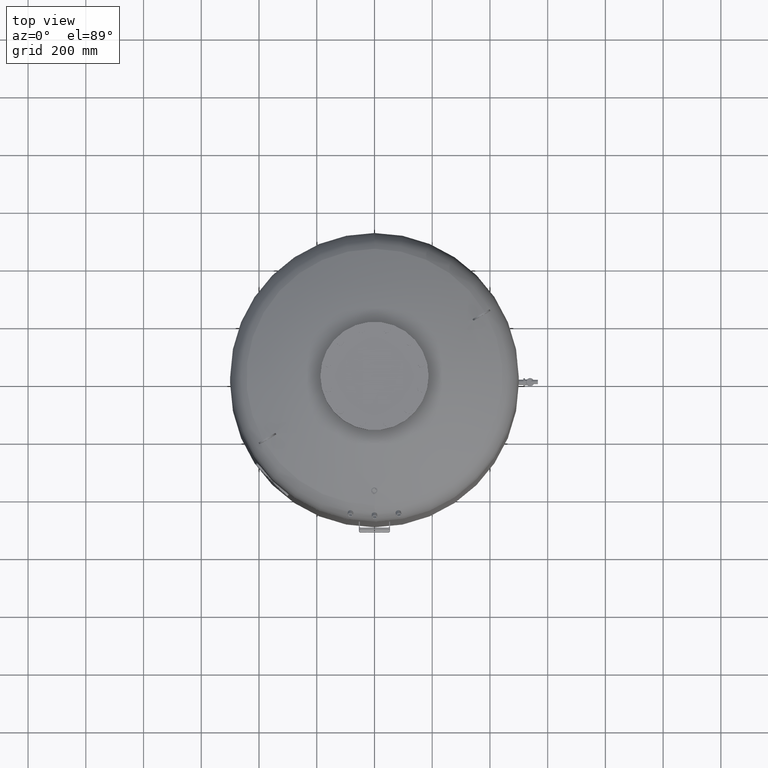
[diagram: clean part render]
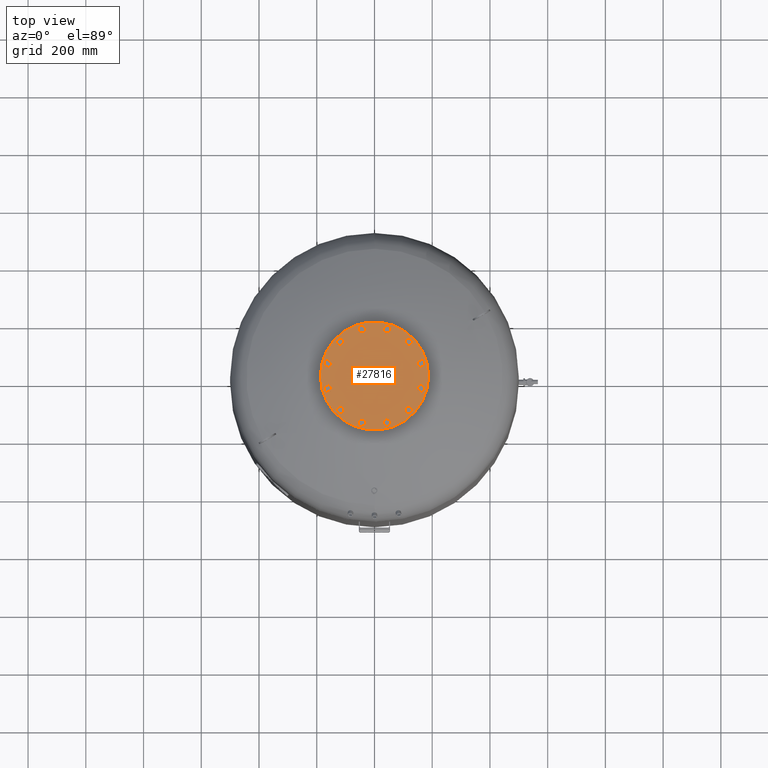
[diagram: same view with one face highlighted and labeled with its STEP entity id]
A machine part, top view. The second image highlights one B-rep face of the part: STEP entity #27816.
In plain terms, the highlighted planar face has unit normal (0, 0, 1).
Its self-contained STEP definition (entity closure, byte-faithful):
#20054=CARTESIAN_POINT('',(-187.500000000000000,0.0,2050.0));
#20055=VERTEX_POINT('',#20054);
#20071=CARTESIAN_POINT('',(187.500000000000000,-2.296137E-014,2050.0));
#20072=VERTEX_POINT('',#20071);
#20079=CARTESIAN_POINT('',(0.0,0.0,2050.0));
#20080=DIRECTION('',(0.0,0.0,-1.0));
#20081=DIRECTION('',(-1.0,0.0,0.0));
#20082=AXIS2_PLACEMENT_3D('',#20079,#20080,#20081);
#20083=CIRCLE('',#20082,187.500000000000000);
#20084=EDGE_CURVE('',#20072,#20055,#20083,.T.);
#25310=CARTESIAN_POINT('',(157.729139400922860,30.104983413641008,2050.0));
#25311=VERTEX_POINT('',#25310);
#25312=CARTESIAN_POINT('',(148.288440171855850,40.247625971983268,2050.0));
#25313=VERTEX_POINT('',#25312);
#25314=CARTESIAN_POINT('',(157.729139400922860,30.104983413641008,2050.0));
#25315=DIRECTION('',(-0.681323780155013,0.731982176419128,0.0));
#25316=VECTOR('',#25315,13.856406460551090);
#25317=LINE('',#25314,#25316);
#25318=EDGE_CURVE('',#25311,#25313,#25317,.T.);
#25350=CARTESIAN_POINT('',(171.233275132485970,33.209547496330110,2050.0));
#25351=VERTEX_POINT('',#25350);
#25352=CARTESIAN_POINT('',(171.233275132485970,33.209547496330110,2050.0));
#25353=DIRECTION('',(-0.974577049973894,-0.224052613607123,0.0));
#25354=VECTOR('',#25353,13.856406460551119);
#25355=LINE('',#25352,#25354);
#25356=EDGE_CURVE('',#25351,#25311,#25355,.T.);
#25381=CARTESIAN_POINT('',(175.296711634982050,46.456754137361422,2050.0));
#25382=VERTEX_POINT('',#25381);
#25383=CARTESIAN_POINT('',(175.296711634982050,46.456754137361422,2050.0));
#25384=DIRECTION('',(-0.293253269818881,-0.956034790026249,0.0));
#25385=VECTOR('',#25384,13.856406460551076);
#25386=LINE('',#25383,#25385);
#25387=EDGE_CURVE('',#25382,#25351,#25386,.T.);
#25412=CARTESIAN_POINT('',(152.351876674351930,53.494832613014587,2050.0));
#25413=VERTEX_POINT('',#25412);
#25414=CARTESIAN_POINT('',(148.288440171855850,40.247625971983268,2050.0));
#25415=DIRECTION('',(0.293253269818881,0.956034790026249,0.0));
#25416=VECTOR('',#25415,13.856406460551083);
#25417=LINE('',#25414,#25416);
#25418=EDGE_CURVE('',#25313,#25413,#25417,.T.);
#25443=CARTESIAN_POINT('',(165.856012405915040,56.599396695703689,2050.0));
#25444=VERTEX_POINT('',#25443);
#25445=CARTESIAN_POINT('',(152.351876674351930,53.494832613014587,2050.0));
#25446=DIRECTION('',(0.974577049973894,0.224052613607123,0.0));
#25447=VECTOR('',#25446,13.856406460551119);
#25448=LINE('',#25445,#25447);
#25449=EDGE_CURVE('',#25413,#25444,#25448,.T.);
#25474=CARTESIAN_POINT('',(165.856012405915040,56.599396695703689,2050.0));
#25475=DIRECTION('',(0.681323780155012,-0.731982176419129,0.0));
#25476=VECTOR('',#25475,13.856406460551096);
#25477=LINE('',#25474,#25476);
#25478=EDGE_CURVE('',#25444,#25382,#25477,.T.);
#25510=CARTESIAN_POINT('',(121.544949931435720,104.936250117183760,2050.0));
#25511=VERTEX_POINT('',#25510);
#25512=CARTESIAN_POINT('',(108.297743290404380,108.999686619679820,2050.0));
#25513=VERTEX_POINT('',#25512);
#25514=CARTESIAN_POINT('',(121.544949931435720,104.936250117183760,2050.0));
#25515=DIRECTION('',(-0.956034790026250,0.293253269818880,0.0));
#25516=VECTOR('',#25515,13.856406460551101);
#25517=LINE('',#25514,#25516);
#25518=EDGE_CURVE('',#25511,#25513,#25517,.T.);
#25550=CARTESIAN_POINT('',(131.687592489777960,114.376949346250780,2050.0));
#25551=VERTEX_POINT('',#25550);
#25552=CARTESIAN_POINT('',(131.687592489777960,114.376949346250780,2050.0));
#25553=DIRECTION('',(-0.731982176419127,-0.681323780155014,0.0));
#25554=VECTOR('',#25553,13.856406460551080);
#25555=LINE('',#25552,#25554);
#25556=EDGE_CURVE('',#25551,#25511,#25555,.T.);
#25581=CARTESIAN_POINT('',(128.583028407088880,127.881085077813880,2050.0));
#25582=VERTEX_POINT('',#25581);
#25583=CARTESIAN_POINT('',(128.583028407088880,127.881085077813880,2050.0));
#25584=DIRECTION('',(0.224052613607122,-0.974577049973894,0.0));
#25585=VECTOR('',#25584,13.856406460551099);
#25586=LINE('',#25583,#25585);
#25587=EDGE_CURVE('',#25582,#25551,#25586,.T.);
#25612=CARTESIAN_POINT('',(105.193179207715300,122.503822351242900,2050.0));
#25613=VERTEX_POINT('',#25612);
#25614=CARTESIAN_POINT('',(108.297743290404380,108.999686619679820,2050.0));
#25615=DIRECTION('',(-0.224052613607122,0.974577049973894,0.0));
#25616=VECTOR('',#25615,13.856406460551087);
#25617=LINE('',#25614,#25616);
#25618=EDGE_CURVE('',#25513,#25613,#25617,.T.);
#25643=CARTESIAN_POINT('',(115.335821766057560,131.944521580309950,2050.0));
#25644=VERTEX_POINT('',#25643);
#25645=CARTESIAN_POINT('',(105.193179207715300,122.503822351242900,2050.0));
#25646=DIRECTION('',(0.731982176419127,0.681323780155014,0.0));
#25647=VECTOR('',#25646,13.856406460551121);
#25648=LINE('',#25645,#25647);
#25649=EDGE_CURVE('',#25613,#25644,#25648,.T.);
#25674=CARTESIAN_POINT('',(115.335821766057560,131.944521580309950,2050.0));
#25675=DIRECTION('',(0.956034790026249,-0.293253269818881,0.0));
#25676=VECTOR('',#25675,13.856406460551076);
#25677=LINE('',#25674,#25676);
#25678=EDGE_CURVE('',#25644,#25582,#25677,.T.);
#25710=CARTESIAN_POINT('',(52.792889283739193,151.649933345076730,2050.0));
#25711=VERTEX_POINT('',#25710);
#25712=CARTESIAN_POINT('',(39.288753552176118,148.545369262387680,2050.0));
#25713=VERTEX_POINT('',#25712);
#25714=CARTESIAN_POINT('',(52.792889283739193,151.649933345076730,2050.0));
#25715=DIRECTION('',(-0.974577049973894,-0.224052613607120,0.0));
#25716=VECTOR('',#25715,13.856406460551073);
#25717=LINE('',#25714,#25716);
#25718=EDGE_CURVE('',#25711,#25713,#25717,.T.);
#25750=CARTESIAN_POINT('',(56.856325786235274,164.897139986108100,2050.0));
#25751=VERTEX_POINT('',#25750);
#25752=CARTESIAN_POINT('',(56.856325786235274,164.897139986108100,2050.0));
#25753=DIRECTION('',(-0.293253269818881,-0.956034790026249,0.0));
#25754=VECTOR('',#25753,13.856406460551133);
#25755=LINE('',#25752,#25754);
#25756=EDGE_CURVE('',#25751,#25711,#25755,.T.);
#25781=CARTESIAN_POINT('',(47.415626557168267,175.039782544450330,2050.0));
#25782=VERTEX_POINT('',#25781);
#25783=CARTESIAN_POINT('',(47.415626557168267,175.039782544450330,2050.0));
#25784=DIRECTION('',(0.681323780155014,-0.731982176419128,0.0));
#25785=VECTOR('',#25784,13.856406460551069);
#25786=LINE('',#25783,#25785);
#25787=EDGE_CURVE('',#25782,#25751,#25786,.T.);
#25812=CARTESIAN_POINT('',(29.848054323109103,158.688011820729910,2050.0));
#25813=VERTEX_POINT('',#25812);
#25814=CARTESIAN_POINT('',(39.288753552176118,148.545369262387680,2050.0));
#25815=DIRECTION('',(-0.681323780155014,0.731982176419127,0.0));
#25816=VECTOR('',#25815,13.856406460551076);
#25817=LINE('',#25814,#25816);
#25818=EDGE_CURVE('',#25713,#25813,#25817,.T.);
#25843=CARTESIAN_POINT('',(33.911490825605156,171.935218461761250,2050.0));
#25844=VERTEX_POINT('',#25843);
#25845=CARTESIAN_POINT('',(29.848054323109103,158.688011820729910,2050.0));
#25846=DIRECTION('',(0.293253269818879,0.956034790026250,0.0));
#25847=VECTOR('',#25846,13.856406460551097);
#25848=LINE('',#25845,#25847);
#25849=EDGE_CURVE('',#25813,#25844,#25848,.T.);
#25874=CARTESIAN_POINT('',(33.911490825605156,171.935218461761250,2050.0));
#25875=DIRECTION('',(0.974577049973894,0.224052613607121,0.0));
#25876=VECTOR('',#25875,13.856406460551113);
#25877=LINE('',#25874,#25876);
#25878=EDGE_CURVE('',#25844,#25782,#25877,.T.);
#25910=CARTESIAN_POINT('',(-30.104983413641008,157.729139400922860,2050.0));
#25911=VERTEX_POINT('',#25910);
#25912=CARTESIAN_POINT('',(-40.247625971983268,148.288440171855850,2050.0));
#25913=VERTEX_POINT('',#25912);
#25914=CARTESIAN_POINT('',(-30.104983413641008,157.729139400922860,2050.0));
#25915=DIRECTION('',(-0.731982176419128,-0.681323780155013,0.0));
#25916=VECTOR('',#25915,13.856406460551090);
#25917=LINE('',#25914,#25916);
#25918=EDGE_CURVE('',#25911,#25913,#25917,.T.);
#25950=CARTESIAN_POINT('',(-33.209547496330110,171.233275132485970,2050.0));
#25951=VERTEX_POINT('',#25950);
#25952=CARTESIAN_POINT('',(-33.209547496330110,171.233275132485970,2050.0));
#25953=DIRECTION('',(0.224052613607123,-0.974577049973894,0.0));
#25954=VECTOR('',#25953,13.856406460551119);
#25955=LINE('',#25952,#25954);
#25956=EDGE_CURVE('',#25951,#25911,#25955,.T.);
#25981=CARTESIAN_POINT('',(-46.456754137361422,175.296711634982050,2050.0));
#25982=VERTEX_POINT('',#25981);
#25983=CARTESIAN_POINT('',(-46.456754137361422,175.296711634982050,2050.0));
#25984=DIRECTION('',(0.956034790026249,-0.293253269818881,0.0));
#25985=VECTOR('',#25984,13.856406460551076);
#25986=LINE('',#25983,#25985);
#25987=EDGE_CURVE('',#25982,#25951,#25986,.T.);
#26012=CARTESIAN_POINT('',(-53.494832613014587,152.351876674351930,2050.0));
#26013=VERTEX_POINT('',#26012);
#26014=CARTESIAN_POINT('',(-40.247625971983268,148.288440171855850,2050.0));
#26015=DIRECTION('',(-0.956034790026249,0.293253269818881,0.0));
#26016=VECTOR('',#26015,13.856406460551083);
#26017=LINE('',#26014,#26016);
#26018=EDGE_CURVE('',#25913,#26013,#26017,.T.);
#26043=CARTESIAN_POINT('',(-56.599396695703689,165.856012405915040,2050.0));
#26044=VERTEX_POINT('',#26043);
#26045=CARTESIAN_POINT('',(-53.494832613014587,152.351876674351930,2050.0));
#26046=DIRECTION('',(-0.224052613607123,0.974577049973894,0.0));
#26047=VECTOR('',#26046,13.856406460551119);
#26048=LINE('',#26045,#26047);
#26049=EDGE_CURVE('',#26013,#26044,#26048,.T.);
#26074=CARTESIAN_POINT('',(-56.599396695703689,165.856012405915040,2050.0));
#26075=DIRECTION('',(0.731982176419129,0.681323780155012,0.0));
#26076=VECTOR('',#26075,13.856406460551096);
#26077=LINE('',#26074,#26076);
#26078=EDGE_CURVE('',#26044,#25982,#26077,.T.);
#26110=CARTESIAN_POINT('',(-104.936250117183700,121.544949931435750,2050.0));
#26111=VERTEX_POINT('',#26110);
#26112=CARTESIAN_POINT('',(-108.999686619679760,108.297743290404440,2050.0));
#26113=VERTEX_POINT('',#26112);
#26114=CARTESIAN_POINT('',(-104.936250117183700,121.544949931435750,2050.0));
#26115=DIRECTION('',(-0.293253269818880,-0.956034790026249,0.0));
#26116=VECTOR('',#26115,13.856406460551073);
#26117=LINE('',#26114,#26116);
#26118=EDGE_CURVE('',#26111,#26113,#26117,.T.);
#26150=CARTESIAN_POINT('',(-114.376949346250730,131.687592489778010,2050.0));
#26151=VERTEX_POINT('',#26150);
#26152=CARTESIAN_POINT('',(-114.376949346250730,131.687592489778010,2050.0));
#26153=DIRECTION('',(0.681323780155013,-0.731982176419128,0.0));
#26154=VECTOR('',#26153,13.856406460551101);
#26155=LINE('',#26152,#26154);
#26156=EDGE_CURVE('',#26151,#26111,#26155,.T.);
#26181=CARTESIAN_POINT('',(-127.881085077813810,128.583028407088930,2050.0));
#26182=VERTEX_POINT('',#26181);
#26183=CARTESIAN_POINT('',(-127.881085077813810,128.583028407088930,2050.0));
#26184=DIRECTION('',(0.974577049973894,0.224052613607122,0.0));
#26185=VECTOR('',#26184,13.856406460551087);
#26186=LINE('',#26183,#26185);
#26187=EDGE_CURVE('',#26182,#26151,#26186,.T.);
#26212=CARTESIAN_POINT('',(-122.503822351242850,105.193179207715360,2050.0));
#26213=VERTEX_POINT('',#26212);
#26214=CARTESIAN_POINT('',(-108.999686619679760,108.297743290404440,2050.0));
#26215=DIRECTION('',(-0.974577049973894,-0.224052613607122,0.0));
#26216=VECTOR('',#26215,13.856406460551087);
#26217=LINE('',#26214,#26216);
#26218=EDGE_CURVE('',#26113,#26213,#26217,.T.);
#26243=CARTESIAN_POINT('',(-131.944521580309900,115.335821766057620,2050.0));
#26244=VERTEX_POINT('',#26243);
#26245=CARTESIAN_POINT('',(-122.503822351242850,105.193179207715360,2050.0));
#26246=DIRECTION('',(-0.681323780155014,0.731982176419127,0.0));
#26247=VECTOR('',#26246,13.856406460551121);
#26248=LINE('',#26245,#26247);
#26249=EDGE_CURVE('',#26213,#26244,#26248,.T.);
#26274=CARTESIAN_POINT('',(-131.944521580309900,115.335821766057620,2050.0));
#26275=DIRECTION('',(0.293253269818882,0.956034790026249,0.0));
#26276=VECTOR('',#26275,13.856406460551081);
#26277=LINE('',#26274,#26276);
#26278=EDGE_CURVE('',#26244,#26182,#26277,.T.);
#26310=CARTESIAN_POINT('',(-151.649933345076730,52.792889283739214,2050.0));
#26311=VERTEX_POINT('',#26310);
#26312=CARTESIAN_POINT('',(-148.545369262387650,39.288753552176125,2050.0));
#26313=VERTEX_POINT('',#26312);
#26314=CARTESIAN_POINT('',(-151.649933345076730,52.792889283739214,2050.0));
#26315=DIRECTION('',(0.224052613607122,-0.974577049973894,0.0));
#26316=VECTOR('',#26315,13.856406460551092);
#26317=LINE('',#26314,#26316);
#26318=EDGE_CURVE('',#26311,#26313,#26317,.T.);
#26350=CARTESIAN_POINT('',(-164.897139986108100,56.856325786235296,2050.0));
#26351=VERTEX_POINT('',#26350);
#26352=CARTESIAN_POINT('',(-164.897139986108100,56.856325786235296,2050.0));
#26353=DIRECTION('',(0.956034790026249,-0.293253269818881,0.0));
#26354=VECTOR('',#26353,13.856406460551133);
#26355=LINE('',#26352,#26354);
#26356=EDGE_CURVE('',#26351,#26311,#26355,.T.);
#26381=CARTESIAN_POINT('',(-175.039782544450300,47.415626557168260,2050.0));
#26382=VERTEX_POINT('',#26381);
#26383=CARTESIAN_POINT('',(-175.039782544450300,47.415626557168260,2050.0));
#26384=DIRECTION('',(0.731982176419126,0.681323780155016,0.0));
#26385=VECTOR('',#26384,13.856406460551069);
#26386=LINE('',#26383,#26385);
#26387=EDGE_CURVE('',#26382,#26351,#26386,.T.);
#26412=CARTESIAN_POINT('',(-158.688011820729910,29.848054323109110,2050.0));
#26413=VERTEX_POINT('',#26412);
#26414=CARTESIAN_POINT('',(-148.545369262387650,39.288753552176125,2050.0));
#26415=DIRECTION('',(-0.731982176419128,-0.681323780155013,0.0));
#26416=VECTOR('',#26415,13.856406460551096);
#26417=LINE('',#26414,#26416);
#26418=EDGE_CURVE('',#26313,#26413,#26417,.T.);
#26443=CARTESIAN_POINT('',(-171.935218461761250,33.911490825605171,2050.0));
#26444=VERTEX_POINT('',#26443);
#26445=CARTESIAN_POINT('',(-158.688011820729910,29.848054323109110,2050.0));
#26446=DIRECTION('',(-0.956034790026250,0.293253269818880,0.0));
#26447=VECTOR('',#26446,13.856406460551101);
#26448=LINE('',#26445,#26447);
#26449=EDGE_CURVE('',#26413,#26444,#26448,.T.);
#26474=CARTESIAN_POINT('',(-171.935218461761250,33.911490825605171,2050.0));
#26475=DIRECTION('',(-0.224052613607120,0.974577049973894,0.0));
#26476=VECTOR('',#26475,13.856406460551087);
#26477=LINE('',#26474,#26476);
#26478=EDGE_CURVE('',#26444,#26382,#26477,.T.);
#26510=CARTESIAN_POINT('',(-157.729139400922860,-30.104983413640987,2050.0));
#26511=VERTEX_POINT('',#26510);
#26512=CARTESIAN_POINT('',(-148.288440171855850,-40.247625971983247,2050.0));
#26513=VERTEX_POINT('',#26512);
#26514=CARTESIAN_POINT('',(-157.729139400922860,-30.104983413640987,2050.0));
#26515=DIRECTION('',(0.681323780155013,-0.731982176419128,0.0));
#26516=VECTOR('',#26515,13.856406460551090);
#26517=LINE('',#26514,#26516);
#26518=EDGE_CURVE('',#26511,#26513,#26517,.T.);
#26550=CARTESIAN_POINT('',(-171.233275132486000,-33.209547496330096,2050.0));
#26551=VERTEX_POINT('',#26550);
#26552=CARTESIAN_POINT('',(-171.233275132486000,-33.209547496330096,2050.0));
#26553=DIRECTION('',(0.974577049973894,0.224052613607123,0.0));
#26554=VECTOR('',#26553,13.856406460551147);
#26555=LINE('',#26552,#26554);
#26556=EDGE_CURVE('',#26551,#26511,#26555,.T.);
#26581=CARTESIAN_POINT('',(-175.296711634982050,-46.456754137361401,2050.0));
#26582=VERTEX_POINT('',#26581);
#26583=CARTESIAN_POINT('',(-175.296711634982050,-46.456754137361401,2050.0));
#26584=DIRECTION('',(0.293253269818880,0.956034790026250,0.0));
#26585=VECTOR('',#26584,13.856406460551062);
#26586=LINE('',#26583,#26585);
#26587=EDGE_CURVE('',#26582,#26551,#26586,.T.);
#26612=CARTESIAN_POINT('',(-152.351876674351960,-53.494832613014580,2050.0));
#26613=VERTEX_POINT('',#26612);
#26614=CARTESIAN_POINT('',(-148.288440171855850,-40.247625971983247,2050.0));
#26615=DIRECTION('',(-0.293253269818883,-0.956034790026249,0.0));
#26616=VECTOR('',#26615,13.856406460551106);
#26617=LINE('',#26614,#26616);
#26618=EDGE_CURVE('',#26513,#26613,#26617,.T.);
#26643=CARTESIAN_POINT('',(-165.856012405915070,-56.599396695703646,2050.0));
#26644=VERTEX_POINT('',#26643);
#26645=CARTESIAN_POINT('',(-152.351876674351960,-53.494832613014580,2050.0));
#26646=DIRECTION('',(-0.974577049973894,-0.224052613607121,0.0));
#26647=VECTOR('',#26646,13.856406460551110);
#26648=LINE('',#26645,#26647);
#26649=EDGE_CURVE('',#26613,#26644,#26648,.T.);
#26674=CARTESIAN_POINT('',(-165.856012405915070,-56.599396695703646,2050.0));
#26675=DIRECTION('',(-0.681323780155012,0.731982176419129,0.0));
#26676=VECTOR('',#26675,13.856406460551062);
#26677=LINE('',#26674,#26676);
#26678=EDGE_CURVE('',#26644,#26582,#26677,.T.);
#26710=CARTESIAN_POINT('',(-121.544949931435750,-104.936250117183680,2050.0));
#26711=VERTEX_POINT('',#26710);
#26712=CARTESIAN_POINT('',(-108.297743290404440,-108.999686619679760,2050.0));
#26713=VERTEX_POINT('',#26712);
#26714=CARTESIAN_POINT('',(-121.544949931435750,-104.936250117183680,2050.0));
#26715=DIRECTION('',(0.956034790026249,-0.293253269818882,0.0));
#26716=VECTOR('',#26715,13.856406460551081);
#26717=LINE('',#26714,#26716);
#26718=EDGE_CURVE('',#26711,#26713,#26717,.T.);
#26750=CARTESIAN_POINT('',(-131.687592489778010,-114.376949346250730,2050.0));
#26751=VERTEX_POINT('',#26750);
#26752=CARTESIAN_POINT('',(-131.687592489778010,-114.376949346250730,2050.0));
#26753=DIRECTION('',(0.731982176419127,0.681323780155014,0.0));
#26754=VECTOR('',#26753,13.856406460551121);
#26755=LINE('',#26752,#26754);
#26756=EDGE_CURVE('',#26751,#26711,#26755,.T.);
#26781=CARTESIAN_POINT('',(-128.583028407088930,-127.881085077813790,2050.0));
#26782=VERTEX_POINT('',#26781);
#26783=CARTESIAN_POINT('',(-128.583028407088930,-127.881085077813790,2050.0));
#26784=DIRECTION('',(-0.224052613607122,0.974577049973894,0.0));
#26785=VECTOR('',#26784,13.856406460551071);
#26786=LINE('',#26783,#26785);
#26787=EDGE_CURVE('',#26782,#26751,#26786,.T.);
#26812=CARTESIAN_POINT('',(-105.193179207715360,-122.503822351242850,2050.0));
#26813=VERTEX_POINT('',#26812);
#26814=CARTESIAN_POINT('',(-108.297743290404440,-108.999686619679760,2050.0));
#26815=DIRECTION('',(0.224052613607122,-0.974577049973894,0.0));
#26816=VECTOR('',#26815,13.856406460551087);
#26817=LINE('',#26814,#26816);
#26818=EDGE_CURVE('',#26713,#26813,#26817,.T.);
#26843=CARTESIAN_POINT('',(-115.335821766057620,-131.944521580309900,2050.0));
#26844=VERTEX_POINT('',#26843);
#26845=CARTESIAN_POINT('',(-105.193179207715360,-122.503822351242850,2050.0));
#26846=DIRECTION('',(-0.731982176419127,-0.681323780155014,0.0));
#26847=VECTOR('',#26846,13.856406460551121);
#26848=LINE('',#26845,#26847);
#26849=EDGE_CURVE('',#26813,#26844,#26848,.T.);
#26874=CARTESIAN_POINT('',(-115.335821766057620,-131.944521580309900,2050.0));
#26875=DIRECTION('',(-0.956034790026249,0.293253269818883,0.0));
#26876=VECTOR('',#26875,13.856406460551085);
#26877=LINE('',#26874,#26876);
#26878=EDGE_CURVE('',#26844,#26782,#26877,.T.);
#26910=CARTESIAN_POINT('',(-52.792889283739228,-151.649933345076730,2050.0));
#26911=VERTEX_POINT('',#26910);
#26912=CARTESIAN_POINT('',(-39.288753552176132,-148.545369262387680,2050.0));
#26913=VERTEX_POINT('',#26912);
#26914=CARTESIAN_POINT('',(-52.792889283739228,-151.649933345076730,2050.0));
#26915=DIRECTION('',(0.974577049973894,0.224052613607120,0.0));
#26916=VECTOR('',#26915,13.856406460551094);
#26917=LINE('',#26914,#26916);
#26918=EDGE_CURVE('',#26911,#26913,#26917,.T.);
#26950=CARTESIAN_POINT('',(-56.856325786235296,-164.897139986108100,2050.0));
#26951=VERTEX_POINT('',#26950);
#26952=CARTESIAN_POINT('',(-56.856325786235296,-164.897139986108100,2050.0));
#26953=DIRECTION('',(0.293253269818880,0.956034790026250,0.0));
#26954=VECTOR('',#26953,13.856406460551129);
#26955=LINE('',#26952,#26954);
#26956=EDGE_CURVE('',#26951,#26911,#26955,.T.);
#26981=CARTESIAN_POINT('',(-47.415626557168281,-175.039782544450300,2050.0));
#26982=VERTEX_POINT('',#26981);
#26983=CARTESIAN_POINT('',(-47.415626557168281,-175.039782544450300,2050.0));
#26984=DIRECTION('',(-0.681323780155015,0.731982176419126,0.0));
#26985=VECTOR('',#26984,13.856406460551055);
#26986=LINE('',#26983,#26985);
#26987=EDGE_CURVE('',#26982,#26951,#26986,.T.);
#27012=CARTESIAN_POINT('',(-29.848054323109121,-158.688011820729910,2050.0));
#27013=VERTEX_POINT('',#27012);
#27014=CARTESIAN_POINT('',(-39.288753552176132,-148.545369262387680,2050.0));
#27015=DIRECTION('',(0.681323780155014,-0.731982176419127,0.0));
#27016=VECTOR('',#27015,13.856406460551073);
#27017=LINE('',#27014,#27016);
#27018=EDGE_CURVE('',#26913,#27013,#27017,.T.);
#27043=CARTESIAN_POINT('',(-33.911490825605199,-171.935218461761280,2050.0));
#27044=VERTEX_POINT('',#27043);
#27045=CARTESIAN_POINT('',(-29.848054323109121,-158.688011820729910,2050.0));
#27046=DIRECTION('',(-0.293253269818880,-0.956034790026249,0.0));
#27047=VECTOR('',#27046,13.856406460551133);
#27048=LINE('',#27045,#27047);
#27049=EDGE_CURVE('',#27013,#27044,#27048,.T.);
#27074=CARTESIAN_POINT('',(-33.911490825605199,-171.935218461761280,2050.0));
#27075=DIRECTION('',(-0.974577049973895,-0.224052613607118,0.0));
#27076=VECTOR('',#27075,13.856406460551074);
#27077=LINE('',#27074,#27076);
#27078=EDGE_CURVE('',#27044,#26982,#27077,.T.);
#27110=CARTESIAN_POINT('',(30.104983413640952,-157.729139400922890,2050.0));
#27111=VERTEX_POINT('',#27110);
#27112=CARTESIAN_POINT('',(40.247625971983211,-148.288440171855880,2050.0));
#27113=VERTEX_POINT('',#27112);
#27114=CARTESIAN_POINT('',(30.104983413640952,-157.729139400922890,2050.0));
#27115=DIRECTION('',(0.731982176419128,0.681323780155013,0.0));
#27116=VECTOR('',#27115,13.856406460551090);
#27117=LINE('',#27114,#27116);
#27118=EDGE_CURVE('',#27111,#27113,#27117,.T.);
#27150=CARTESIAN_POINT('',(33.209547496330039,-171.233275132486000,2050.0));
#27151=VERTEX_POINT('',#27150);
#27152=CARTESIAN_POINT('',(33.209547496330039,-171.233275132486000,2050.0));
#27153=DIRECTION('',(-0.224052613607122,0.974577049973894,0.0));
#27154=VECTOR('',#27153,13.856406460551115);
#27155=LINE('',#27152,#27154);
#27156=EDGE_CURVE('',#27151,#27111,#27155,.T.);
#27181=CARTESIAN_POINT('',(46.456754137361351,-175.296711634982070,2050.0));
#27182=VERTEX_POINT('',#27181);
#27183=CARTESIAN_POINT('',(46.456754137361351,-175.296711634982070,2050.0));
#27184=DIRECTION('',(-0.956034790026249,0.293253269818881,0.0));
#27185=VECTOR('',#27184,13.856406460551076);
#27186=LINE('',#27183,#27185);
#27187=EDGE_CURVE('',#27182,#27151,#27186,.T.);
#27212=CARTESIAN_POINT('',(53.494832613014523,-152.351876674351960,2050.0));
#27213=VERTEX_POINT('',#27212);
#27214=CARTESIAN_POINT('',(40.247625971983211,-148.288440171855880,2050.0));
#27215=DIRECTION('',(0.956034790026249,-0.293253269818881,0.0));
#27216=VECTOR('',#27215,13.856406460551076);
#27217=LINE('',#27214,#27216);
#27218=EDGE_CURVE('',#27113,#27213,#27217,.T.);
#27243=CARTESIAN_POINT('',(56.599396695703625,-165.856012405915070,2050.0));
#27244=VERTEX_POINT('',#27243);
#27245=CARTESIAN_POINT('',(53.494832613014523,-152.351876674351960,2050.0));
#27246=DIRECTION('',(0.224052613607123,-0.974577049973894,0.0));
#27247=VECTOR('',#27246,13.856406460551119);
#27248=LINE('',#27245,#27247);
#27249=EDGE_CURVE('',#27213,#27244,#27248,.T.);
#27274=CARTESIAN_POINT('',(56.599396695703625,-165.856012405915070,2050.0));
#27275=DIRECTION('',(-0.731982176419129,-0.681323780155012,0.0));
#27276=VECTOR('',#27275,13.856406460551101);
#27277=LINE('',#27274,#27276);
#27278=EDGE_CURVE('',#27244,#27182,#27277,.T.);
#27310=CARTESIAN_POINT('',(104.936250117183660,-121.544949931435800,2050.0));
#27311=VERTEX_POINT('',#27310);
#27312=CARTESIAN_POINT('',(108.999686619679750,-108.297743290404470,2050.0));
#27313=VERTEX_POINT('',#27312);
#27314=CARTESIAN_POINT('',(104.936250117183660,-121.544949931435800,2050.0));
#27315=DIRECTION('',(0.293253269818882,0.956034790026249,0.0));
#27316=VECTOR('',#27315,13.856406460551094);
#27317=LINE('',#27314,#27316);
#27318=EDGE_CURVE('',#27311,#27313,#27317,.T.);
#27350=CARTESIAN_POINT('',(114.376949346250710,-131.687592489778040,2050.0));
#27351=VERTEX_POINT('',#27350);
#27352=CARTESIAN_POINT('',(114.376949346250710,-131.687592489778040,2050.0));
#27353=DIRECTION('',(-0.681323780155015,0.731982176419126,0.0));
#27354=VECTOR('',#27353,13.856406460551110);
#27355=LINE('',#27352,#27354);
#27356=EDGE_CURVE('',#27351,#27311,#27355,.T.);
#27381=CARTESIAN_POINT('',(127.881085077813760,-128.583028407088960,2050.0));
#27382=VERTEX_POINT('',#27381);
#27383=CARTESIAN_POINT('',(127.881085077813760,-128.583028407088960,2050.0));
#27384=DIRECTION('',(-0.974577049973894,-0.224052613607122,0.0));
#27385=VECTOR('',#27384,13.856406460551058);
#27386=LINE('',#27383,#27385);
#27387=EDGE_CURVE('',#27382,#27351,#27386,.T.);
#27412=CARTESIAN_POINT('',(122.503822351242830,-105.193179207715390,2050.0));
#27413=VERTEX_POINT('',#27412);
#27414=CARTESIAN_POINT('',(108.999686619679750,-108.297743290404470,2050.0));
#27415=DIRECTION('',(0.974577049973894,0.224052613607122,0.0));
#27416=VECTOR('',#27415,13.856406460551087);
#27417=LINE('',#27414,#27416);
#27418=EDGE_CURVE('',#27313,#27413,#27417,.T.);
#27443=CARTESIAN_POINT('',(131.944521580309870,-115.335821766057650,2050.0));
#27444=VERTEX_POINT('',#27443);
#27445=CARTESIAN_POINT('',(122.503822351242830,-105.193179207715390,2050.0));
#27446=DIRECTION('',(0.681323780155014,-0.731982176419127,0.0));
#27447=VECTOR('',#27446,13.856406460551110);
#27448=LINE('',#27445,#27447);
#27449=EDGE_CURVE('',#27413,#27444,#27448,.T.);
#27474=CARTESIAN_POINT('',(131.944521580309870,-115.335821766057650,2050.0));
#27475=DIRECTION('',(-0.293253269818883,-0.956034790026249,0.0));
#27476=VECTOR('',#27475,13.856406460551085);
#27477=LINE('',#27474,#27476);
#27478=EDGE_CURVE('',#27444,#27382,#27477,.T.);
#27510=CARTESIAN_POINT('',(151.649933345076730,-52.792889283739228,2050.0));
#27511=VERTEX_POINT('',#27510);
#27512=CARTESIAN_POINT('',(148.545369262387650,-39.288753552176139,2050.0));
#27513=VERTEX_POINT('',#27512);
#27514=CARTESIAN_POINT('',(151.649933345076730,-52.792889283739228,2050.0));
#27515=DIRECTION('',(-0.224052613607122,0.974577049973894,0.0));
#27516=VECTOR('',#27515,13.856406460551092);
#27517=LINE('',#27514,#27516);
#27518=EDGE_CURVE('',#27511,#27513,#27517,.T.);
#27550=CARTESIAN_POINT('',(164.897139986108070,-56.856325786235303,2050.0));
#27551=VERTEX_POINT('',#27550);
#27552=CARTESIAN_POINT('',(164.897139986108070,-56.856325786235303,2050.0));
#27553=DIRECTION('',(-0.956034790026249,0.293253269818881,0.0));
#27554=VECTOR('',#27553,13.856406460551105);
#27555=LINE('',#27552,#27554);
#27556=EDGE_CURVE('',#27551,#27511,#27555,.T.);
#27581=CARTESIAN_POINT('',(175.039782544450300,-47.415626557168295,2050.0));
#27582=VERTEX_POINT('',#27581);
#27583=CARTESIAN_POINT('',(175.039782544450300,-47.415626557168295,2050.0));
#27584=DIRECTION('',(-0.731982176419128,-0.681323780155014,0.0));
#27585=VECTOR('',#27584,13.856406460551069);
#27586=LINE('',#27583,#27585);
#27587=EDGE_CURVE('',#27582,#27551,#27586,.T.);
#27612=CARTESIAN_POINT('',(158.688011820729910,-29.848054323109132,2050.0));
#27613=VERTEX_POINT('',#27612);
#27614=CARTESIAN_POINT('',(148.545369262387650,-39.288753552176139,2050.0));
#27615=DIRECTION('',(0.731982176419128,0.681323780155013,0.0));
#27616=VECTOR('',#27615,13.856406460551090);
#27617=LINE('',#27614,#27616);
#27618=EDGE_CURVE('',#27513,#27613,#27617,.T.);
#27643=CARTESIAN_POINT('',(171.935218461761250,-33.911490825605206,2050.0));
#27644=VERTEX_POINT('',#27643);
#27645=CARTESIAN_POINT('',(158.688011820729910,-29.848054323109132,2050.0));
#27646=DIRECTION('',(0.956034790026249,-0.293253269818881,0.0));
#27647=VECTOR('',#27646,13.856406460551105);
#27648=LINE('',#27645,#27647);
#27649=EDGE_CURVE('',#27613,#27644,#27648,.T.);
#27674=CARTESIAN_POINT('',(171.935218461761250,-33.911490825605206,2050.0));
#27675=DIRECTION('',(0.224052613607120,-0.974577049973894,0.0));
#27676=VECTOR('',#27675,13.856406460551087);
#27677=LINE('',#27674,#27676);
#27678=EDGE_CURVE('',#27644,#27582,#27677,.T.);
#27705=CARTESIAN_POINT('',(-93.750000000000000,-7.888609E-031,2050.0));
#27706=DIRECTION('',(0.0,0.0,1.0));
#27707=DIRECTION('',(0.0,1.0,0.0));
#27708=AXIS2_PLACEMENT_3D('',#27705,#27706,#27707);
#27709=PLANE('',#27708);
#27710=CARTESIAN_POINT('',(0.0,0.0,2050.0));
#27711=DIRECTION('',(0.0,0.0,-1.0));
#27712=DIRECTION('',(-1.0,0.0,0.0));
#27713=AXIS2_PLACEMENT_3D('',#27710,#27711,#27712);
#27714=CIRCLE('',#27713,187.500000000000000);
#27715=EDGE_CURVE('',#20055,#20072,#27714,.T.);
#27716=ORIENTED_EDGE('',*,*,#27715,.F.);
#27717=ORIENTED_EDGE('',*,*,#20084,.F.);
#27718=EDGE_LOOP('',(#27716,#27717));
#27719=FACE_OUTER_BOUND('',#27718,.T.);
#27720=ORIENTED_EDGE('',*,*,#25318,.T.);
#27721=ORIENTED_EDGE('',*,*,#25418,.T.);
#27722=ORIENTED_EDGE('',*,*,#25449,.T.);
#27723=ORIENTED_EDGE('',*,*,#25478,.T.);
#27724=ORIENTED_EDGE('',*,*,#25387,.T.);
#27725=ORIENTED_EDGE('',*,*,#25356,.T.);
#27726=EDGE_LOOP('',(#27720,#27721,#27722,#27723,#27724,#27725));
#27727=FACE_BOUND('',#27726,.T.);
#27728=ORIENTED_EDGE('',*,*,#25518,.T.);
#27729=ORIENTED_EDGE('',*,*,#25618,.T.);
#27730=ORIENTED_EDGE('',*,*,#25649,.T.);
#27731=ORIENTED_EDGE('',*,*,#25678,.T.);
#27732=ORIENTED_EDGE('',*,*,#25587,.T.);
#27733=ORIENTED_EDGE('',*,*,#25556,.T.);
#27734=EDGE_LOOP('',(#27728,#27729,#27730,#27731,#27732,#27733));
#27735=FACE_BOUND('',#27734,.T.);
#27736=ORIENTED_EDGE('',*,*,#25718,.T.);
#27737=ORIENTED_EDGE('',*,*,#25818,.T.);
#27738=ORIENTED_EDGE('',*,*,#25849,.T.);
#27739=ORIENTED_EDGE('',*,*,#25878,.T.);
#27740=ORIENTED_EDGE('',*,*,#25787,.T.);
#27741=ORIENTED_EDGE('',*,*,#25756,.T.);
#27742=EDGE_LOOP('',(#27736,#27737,#27738,#27739,#27740,#27741));
#27743=FACE_BOUND('',#27742,.T.);
#27744=ORIENTED_EDGE('',*,*,#25918,.T.);
#27745=ORIENTED_EDGE('',*,*,#26018,.T.);
#27746=ORIENTED_EDGE('',*,*,#26049,.T.);
#27747=ORIENTED_EDGE('',*,*,#26078,.T.);
#27748=ORIENTED_EDGE('',*,*,#25987,.T.);
#27749=ORIENTED_EDGE('',*,*,#25956,.T.);
#27750=EDGE_LOOP('',(#27744,#27745,#27746,#27747,#27748,#27749));
#27751=FACE_BOUND('',#27750,.T.);
#27752=ORIENTED_EDGE('',*,*,#26118,.T.);
#27753=ORIENTED_EDGE('',*,*,#26218,.T.);
#27754=ORIENTED_EDGE('',*,*,#26249,.T.);
#27755=ORIENTED_EDGE('',*,*,#26278,.T.);
#27756=ORIENTED_EDGE('',*,*,#26187,.T.);
#27757=ORIENTED_EDGE('',*,*,#26156,.T.);
#27758=EDGE_LOOP('',(#27752,#27753,#27754,#27755,#27756,#27757));
#27759=FACE_BOUND('',#27758,.T.);
#27760=ORIENTED_EDGE('',*,*,#26318,.T.);
#27761=ORIENTED_EDGE('',*,*,#26418,.T.);
#27762=ORIENTED_EDGE('',*,*,#26449,.T.);
#27763=ORIENTED_EDGE('',*,*,#26478,.T.);
#27764=ORIENTED_EDGE('',*,*,#26387,.T.);
#27765=ORIENTED_EDGE('',*,*,#26356,.T.);
#27766=EDGE_LOOP('',(#27760,#27761,#27762,#27763,#27764,#27765));
#27767=FACE_BOUND('',#27766,.T.);
#27768=ORIENTED_EDGE('',*,*,#26518,.T.);
#27769=ORIENTED_EDGE('',*,*,#26618,.T.);
#27770=ORIENTED_EDGE('',*,*,#26649,.T.);
#27771=ORIENTED_EDGE('',*,*,#26678,.T.);
#27772=ORIENTED_EDGE('',*,*,#26587,.T.);
#27773=ORIENTED_EDGE('',*,*,#26556,.T.);
#27774=EDGE_LOOP('',(#27768,#27769,#27770,#27771,#27772,#27773));
#27775=FACE_BOUND('',#27774,.T.);
#27776=ORIENTED_EDGE('',*,*,#26718,.T.);
#27777=ORIENTED_EDGE('',*,*,#26818,.T.);
#27778=ORIENTED_EDGE('',*,*,#26849,.T.);
#27779=ORIENTED_EDGE('',*,*,#26878,.T.);
#27780=ORIENTED_EDGE('',*,*,#26787,.T.);
#27781=ORIENTED_EDGE('',*,*,#26756,.T.);
#27782=EDGE_LOOP('',(#27776,#27777,#27778,#27779,#27780,#27781));
#27783=FACE_BOUND('',#27782,.T.);
#27784=ORIENTED_EDGE('',*,*,#26918,.T.);
#27785=ORIENTED_EDGE('',*,*,#27018,.T.);
#27786=ORIENTED_EDGE('',*,*,#27049,.T.);
#27787=ORIENTED_EDGE('',*,*,#27078,.T.);
#27788=ORIENTED_EDGE('',*,*,#26987,.T.);
#27789=ORIENTED_EDGE('',*,*,#26956,.T.);
#27790=EDGE_LOOP('',(#27784,#27785,#27786,#27787,#27788,#27789));
#27791=FACE_BOUND('',#27790,.T.);
#27792=ORIENTED_EDGE('',*,*,#27118,.T.);
#27793=ORIENTED_EDGE('',*,*,#27218,.T.);
#27794=ORIENTED_EDGE('',*,*,#27249,.T.);
#27795=ORIENTED_EDGE('',*,*,#27278,.T.);
#27796=ORIENTED_EDGE('',*,*,#27187,.T.);
#27797=ORIENTED_EDGE('',*,*,#27156,.T.);
#27798=EDGE_LOOP('',(#27792,#27793,#27794,#27795,#27796,#27797));
#27799=FACE_BOUND('',#27798,.T.);
#27800=ORIENTED_EDGE('',*,*,#27318,.T.);
#27801=ORIENTED_EDGE('',*,*,#27418,.T.);
#27802=ORIENTED_EDGE('',*,*,#27449,.T.);
#27803=ORIENTED_EDGE('',*,*,#27478,.T.);
#27804=ORIENTED_EDGE('',*,*,#27387,.T.);
#27805=ORIENTED_EDGE('',*,*,#27356,.T.);
#27806=EDGE_LOOP('',(#27800,#27801,#27802,#27803,#27804,#27805));
#27807=FACE_BOUND('',#27806,.T.);
#27808=ORIENTED_EDGE('',*,*,#27518,.T.);
#27809=ORIENTED_EDGE('',*,*,#27618,.T.);
#27810=ORIENTED_EDGE('',*,*,#27649,.T.);
#27811=ORIENTED_EDGE('',*,*,#27678,.T.);
#27812=ORIENTED_EDGE('',*,*,#27587,.T.);
#27813=ORIENTED_EDGE('',*,*,#27556,.T.);
#27814=EDGE_LOOP('',(#27808,#27809,#27810,#27811,#27812,#27813));
#27815=FACE_BOUND('',#27814,.T.);
#27816=ADVANCED_FACE('',(#27719,#27727,#27735,#27743,#27751,#27759,#27767,#27775,#27783,#27791,#27799,#27807,#27815),#27709,.T.);